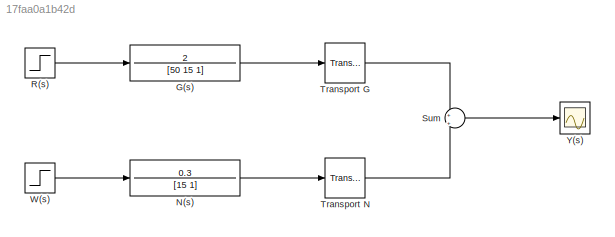
MODEL slx_17faa0a1b42d
KIND model
CONFIG AbsTol = auto
CONFIG EnableMultiTasking = off
CONFIG FixedStep = auto
CONFIG MaxStep = auto
CONFIG MinStep = auto
CONFIG RelTol = 1e-3
CONFIG SampleTimeConstraint = Unconstrained
CONFIG SolverName = VariableStepAuto
CONFIG StartTime = 0.0
CONFIG StopTime = 200
BLOCK [TransferFcn] G(s)
  Denominator = [50 15 1]
  Numerator = 2
BLOCK [TransferFcn] N(s)
  Denominator = [15 1]
  Numerator = 0.3
BLOCK [Step] R(s)
  After = 30
  SampleTime = 0
  Time = 5
BLOCK [Sum] Sum
  Inputs = +|+
BLOCK [TransportDelay] Transport G
  DelayTime = 5
BLOCK [TransportDelay] Transport N
  DelayTime = 5
BLOCK [Step] W(s)
  After = 20
  SampleTime = 0
  Time = 2
BLOCK [Scope] Y(s)
  Floating = off
  NumInputPorts = 1
  ScopeSpecificationString = Simulink.scopes.TimeScopeBlockCfg('CurrentConfiguration', extmgr.ConfigurationSet(extmgr.Configuration('Core','General UI',true),extmgr.Configuration('Core','Source UI',true),extmgr.Configuration('Sources','WiredSimulink',true),extmgr.Configuration('Visuals','Time Domain',true,'SerializedDisplays',{struct('MinYLimReal','-8.25','MaxYLimReal','74.24998','YLabelReal','','MinYLimMag','0.00000','MaxYLi...<+1474ch>
LINE G(s):1 -> Transport G:1
LINE N(s):1 -> Transport N:1
LINE R(s):1 -> G(s):1
LINE Sum:1 -> Y(s):1
LINE Transport G:1 -> Sum:1
LINE Transport N:1 -> Sum:2
LINE W(s):1 -> N(s):1
